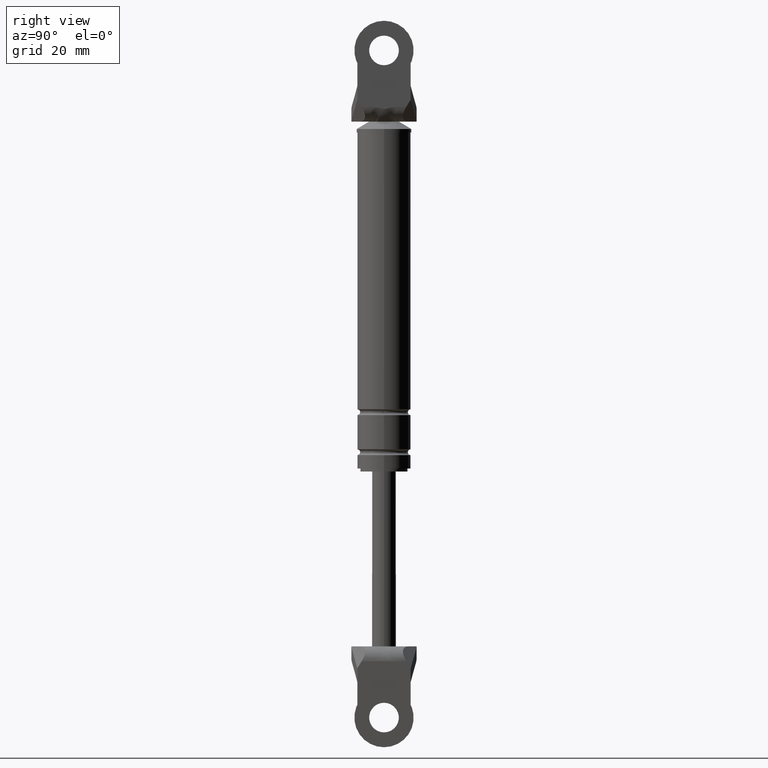
[diagram: clean part render]
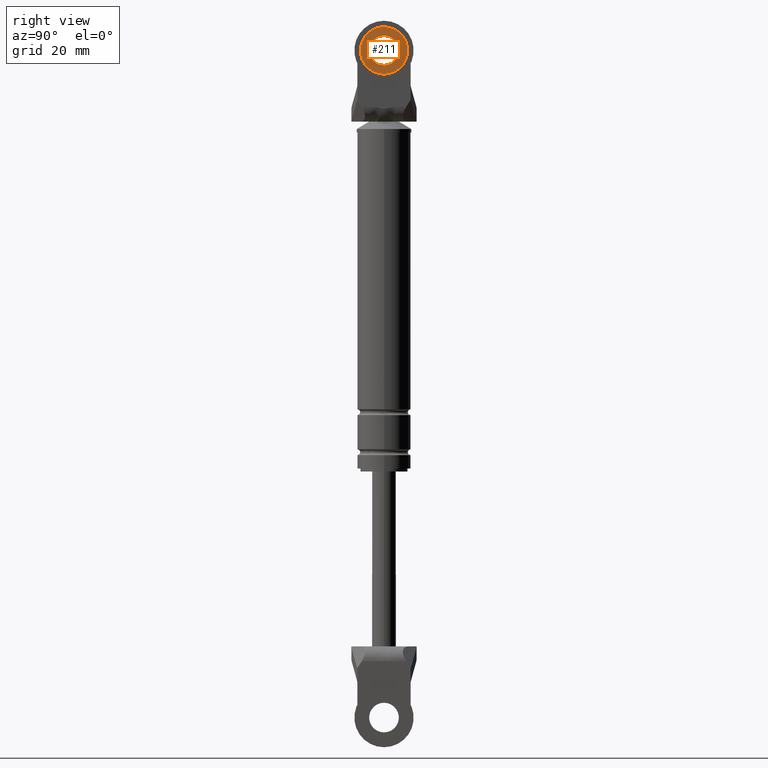
[diagram: same view with one face highlighted and labeled with its STEP entity id]
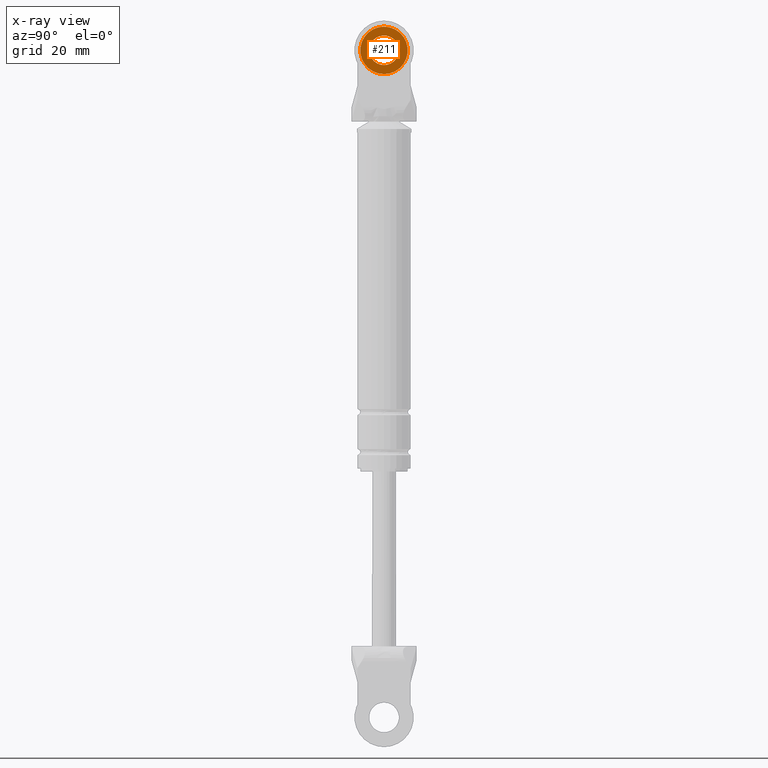
[diagram: x-ray of the same camera — body ghosted, the highlighted face saturated]
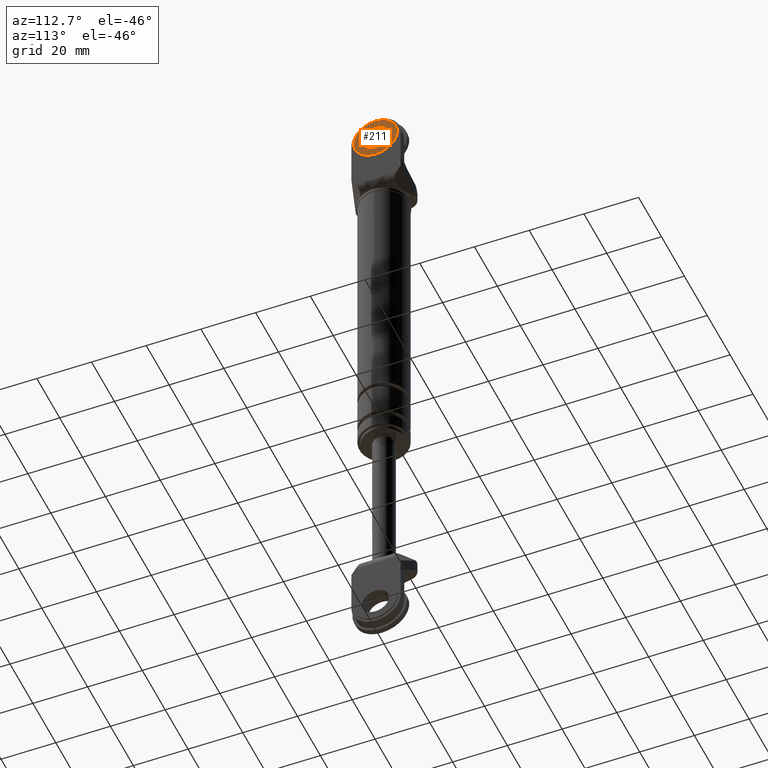
[diagram: same view with one face highlighted and labeled with its STEP entity id]
A machine part, right view. The second image highlights one B-rep face of the part: STEP entity #211.
The next image is the same camera in x-ray: the body ghosted, the highlighted face saturated — about 0% of this face is hidden behind the body in this view.
A second angle (auxiliary view) of the same face is appended — the face is thin or edge-on in the first view.
In plain terms, the highlighted planar face has unit normal (-1, 0, 0).
Its self-contained STEP definition (entity closure, byte-faithful):
#211=ADVANCED_FACE('',(#360,#361),#359,.F.);
#359=PLANE('',#1157);
#360=FACE_OUTER_BOUND('',#1158,.T.);
#361=FACE_BOUND('',#1159,.T.);
#1154=CARTESIAN_POINT('',(6.24999840000E+001,-1.66276877527E+001,2.63400000000E+002));
#1155=DIRECTION('',(-1.00000000000E+000,0.00000000000E+000,0.00000000000E+000));
#1156=DIRECTION('',(0.00000000000E+000,1.00000000000E+000,0.00000000000E+000));
#1157=AXIS2_PLACEMENT_3D('',#1154,#1155,#1156);
#1158=EDGE_LOOP('',(#1790,#1791));
#1159=EDGE_LOOP('',(#1792,#1793));
#1790=ORIENTED_EDGE('',*,*,#2174,.T.);
#1791=ORIENTED_EDGE('',*,*,#2175,.T.);
#1792=ORIENTED_EDGE('',*,*,#2176,.F.);
#1793=ORIENTED_EDGE('',*,*,#2177,.F.);
#2174=EDGE_CURVE('',#2464,#2465,#2466,.T.);
#2175=EDGE_CURVE('',#2465,#2464,#2472,.T.);
#2176=EDGE_CURVE('',#2478,#2479,#2480,.T.);
#2177=EDGE_CURVE('',#2479,#2478,#2486,.T.);
#2464=VERTEX_POINT('',#3738);
#2465=VERTEX_POINT('',#3739);
#2466=CIRCLE('',#3743,8.00000000000E+000);
#2472=CIRCLE('',#3747,8.00000000000E+000);
#2478=VERTEX_POINT('',#3748);
#2479=VERTEX_POINT('',#3749);
#2480=CIRCLE('',#3753,5.00000000000E+000);
#2486=CIRCLE('',#3757,5.00000000000E+000);
#3738=CARTESIAN_POINT('',(6.24999840000E+001,-2.84217094304E-014,2.61000000000E+002));
#3739=CARTESIAN_POINT('',(6.24999840000E+001,-2.69414120642E-014,2.45000000000E+002));
#3740=CARTESIAN_POINT('',(6.24999840000E+001,-2.84217094304E-014,2.53000000000E+002));
#3741=DIRECTION('',(1.00000000000E+000,0.00000000000E+000,-0.00000000000E+000));
#3742=DIRECTION('',(0.00000000000E+000,-1.22460635382E-016,1.00000000000E+000));
#3743=AXIS2_PLACEMENT_3D('',#3740,#3741,#3742);
#3744=CARTESIAN_POINT('',(6.24999840000E+001,-2.84217094304E-014,2.53000000000E+002));
#3745=DIRECTION('',(1.00000000000E+000,0.00000000000E+000,-0.00000000000E+000));
#3746=DIRECTION('',(0.00000000000E+000,-1.22460635382E-016,1.00000000000E+000));
#3747=AXIS2_PLACEMENT_3D('',#3744,#3745,#3746);
#3748=CARTESIAN_POINT('',(6.24999840000E+001,-5.21064672891E-014,2.48000000000E+002));
#3749=CARTESIAN_POINT('',(6.24999840000E+001,-5.68434188608E-014,2.58000000000E+002));
#3750=CARTESIAN_POINT('',(6.24999840000E+001,-5.68434188608E-014,2.53000000000E+002));
#3751=DIRECTION('',(1.00000000000E+000,0.00000000000E+000,-0.00000000000E+000));
#3752=DIRECTION('',(0.00000000000E+000,-1.22460635382E-016,1.00000000000E+000));
#3753=AXIS2_PLACEMENT_3D('',#3750,#3751,#3752);
#3754=CARTESIAN_POINT('',(6.24999840000E+001,-5.68434188608E-014,2.53000000000E+002));
#3755=DIRECTION('',(1.00000000000E+000,0.00000000000E+000,-0.00000000000E+000));
#3756=DIRECTION('',(0.00000000000E+000,-1.22460635382E-016,1.00000000000E+000));
#3757=AXIS2_PLACEMENT_3D('',#3754,#3755,#3756);